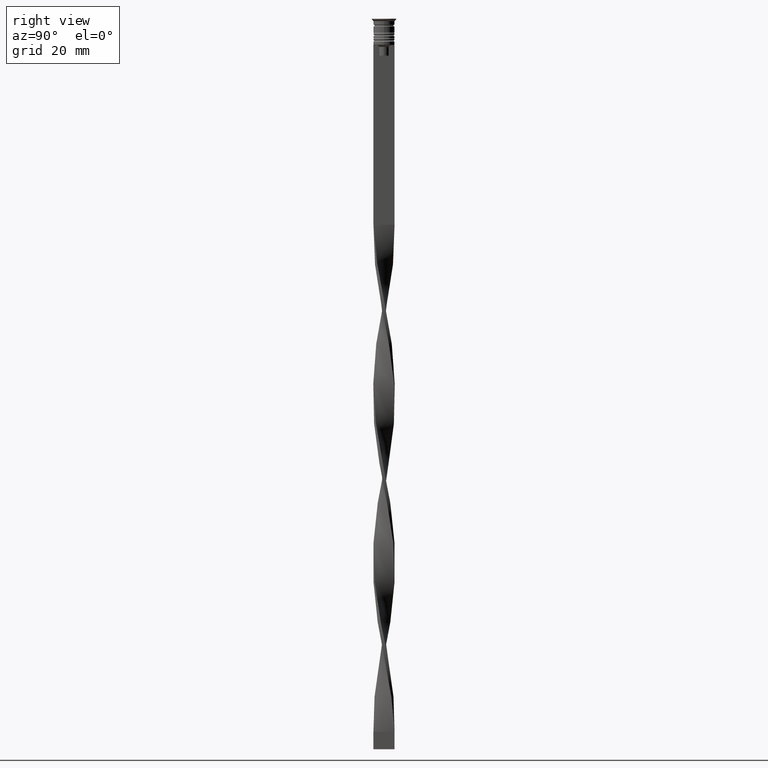
[diagram: clean part render]
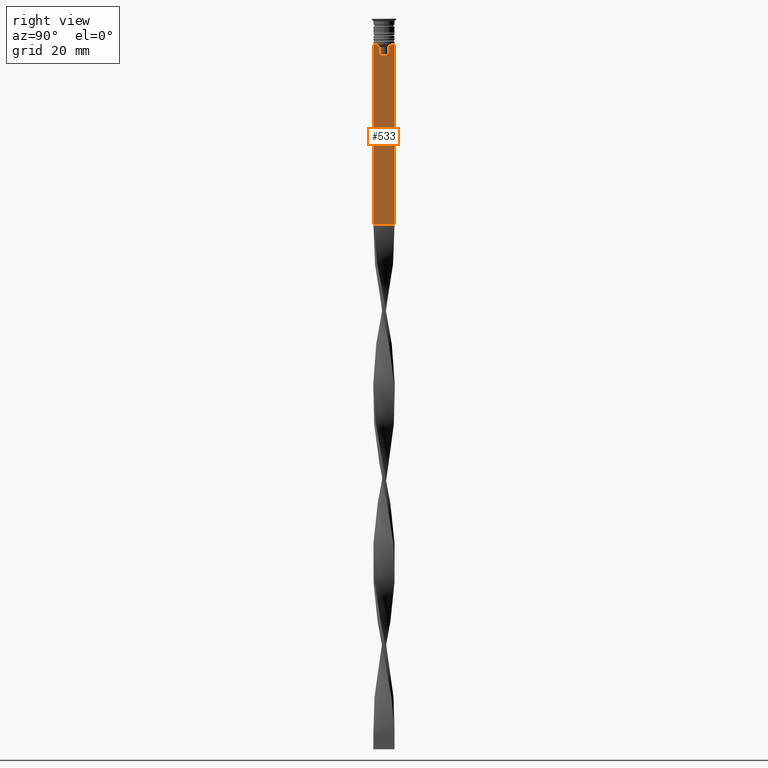
[diagram: same view with one face highlighted and labeled with its STEP entity id]
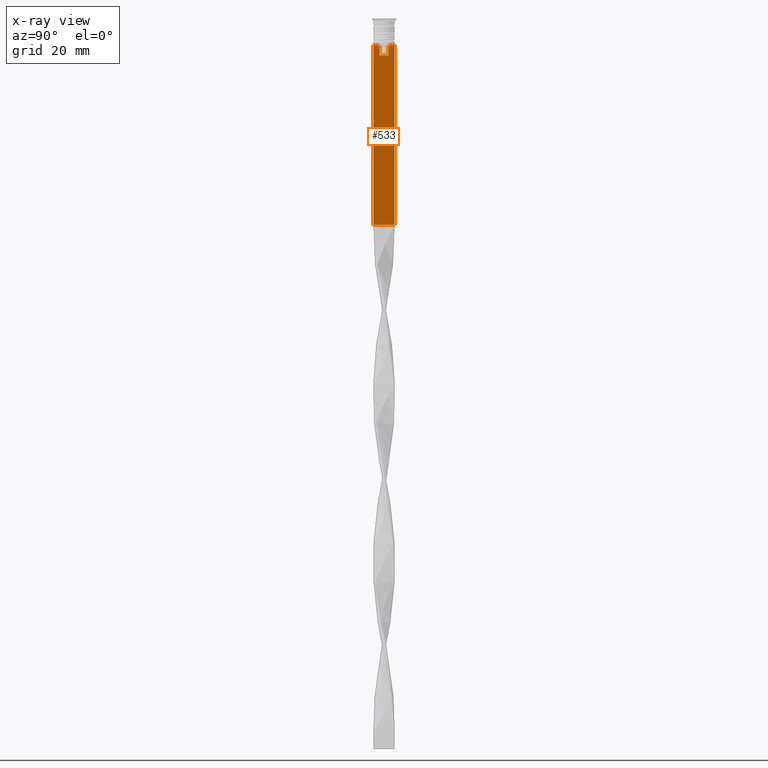
[diagram: x-ray of the same camera — body ghosted, the highlighted face saturated]
A machine part, right view. The second image highlights one B-rep face of the part: STEP entity #533.
The next image is the same camera in x-ray: the body ghosted, the highlighted face saturated — about 0% of this face is hidden behind the body in this view.
In plain terms, the highlighted planar face has unit normal (-1, 0, 0).
Its self-contained STEP definition (entity closure, byte-faithful):
#8 = DIRECTION ( 'NONE',  ( 0.000000000000000000, 0.000000000000000000, -1.000000000000000000 ) ) ;
#32 = CARTESIAN_POINT ( 'NONE',  ( 0.4999999999999998890, -3.000000000000000000, -7.500000000000000000 ) ) ;
#59 = LINE ( 'NONE', #1224, #965 ) ;
#73 = EDGE_CURVE ( 'NONE', #3183, #2482, #277, .T. ) ;
#115 = VERTEX_POINT ( 'NONE', #2541 ) ;
#155 = LINE ( 'NONE', #3302, #2460 ) ;
#211 = LINE ( 'NONE', #1708, #233 ) ;
#233 = VECTOR ( 'NONE', #286, 1000.000000000000000 ) ;
#248 = EDGE_CURVE ( 'NONE', #115, #2804, #1129, .T. ) ;
#263 = EDGE_CURVE ( 'NONE', #2540, #1652, #1782, .T. ) ;
#277 = LINE ( 'NONE', #3396, #3232 ) ;
#286 = DIRECTION ( 'NONE',  ( 0.000000000000000000, -1.000000000000000000, 0.000000000000000000 ) ) ;
#314 = CARTESIAN_POINT ( 'NONE',  ( 0.4999999999999998890, -3.000000000000000000, -7.500000000000000000 ) ) ;
#336 = ORIENTED_EDGE ( 'NONE', *, *, #248, .T. ) ;
#351 = CARTESIAN_POINT ( 'NONE',  ( 0.4999999999999998890, 1.484355510416485835, -7.834966642958598015 ) ) ;
#365 = AXIS2_PLACEMENT_3D ( 'NONE', #3422, #941, #3137 ) ;
#413 = EDGE_CURVE ( 'NONE', #2804, #1934, #211, .T. ) ;
#501 = PLANE ( 'NONE',  #365 ) ;
#509 = EDGE_CURVE ( 'NONE', #1703, #3183, #3437, .T. ) ;
#533 = ADVANCED_FACE ( 'NONE', ( #3059 ), #501, .F. ) ;
#543 = CARTESIAN_POINT ( 'NONE',  ( 0.4999999999999998890, -1.659011726860414093, -7.667884880598472286 ) ) ;
#606 = ORIENTED_EDGE ( 'NONE', *, *, #3571, .T. ) ;
#619 = CARTESIAN_POINT ( 'NONE',  ( 0.4999999999999998890, -3.000000000000000000, -7.500000000000000000 ) ) ;
#637 = EDGE_CURVE ( 'NONE', #115, #1537, #155, .T. ) ;
#678 = CARTESIAN_POINT ( 'NONE',  ( 0.4999999999999998890, 3.000000000000000000, -58.50000000000000000 ) ) ;
#695 = CARTESIAN_POINT ( 'NONE',  ( 0.4999999999999998890, -1.307669683062199439, -8.000000000000000000 ) ) ;
#804 = ORIENTED_EDGE ( 'NONE', *, *, #637, .F. ) ;
#863 = DIRECTION ( 'NONE',  ( 0.000000000000000000, -1.000000000000000000, 0.000000000000000000 ) ) ;
#872 = EDGE_CURVE ( 'NONE', #2482, #3012, #3162, .T. ) ;
#941 = DIRECTION ( 'NONE',  ( -1.000000000000000000, 0.000000000000000000, 0.000000000000000000 ) ) ;
#952 = DIRECTION ( 'NONE',  ( 0.000000000000000000, 1.000000000000000000, 0.000000000000000000 ) ) ;
#965 = VECTOR ( 'NONE', #952, 1000.000000000000000 ) ;
#1006 = DIRECTION ( 'NONE',  ( 0.000000000000000000, 0.000000000000000000, -1.000000000000000000 ) ) ;
#1129 = LINE ( 'NONE', #619, #3477 ) ;
#1196 = ORIENTED_EDGE ( 'NONE', *, *, #263, .T. ) ;
#1224 = CARTESIAN_POINT ( 'NONE',  ( 0.4999999999999998890, -3.000000000000000000, -58.50000000000000000 ) ) ;
#1248 = VECTOR ( 'NONE', #2312, 1000.000000000000000 ) ;
#1294 = ORIENTED_EDGE ( 'NONE', *, *, #73, .T. ) ;
#1304 = CARTESIAN_POINT ( 'NONE',  ( 0.4999999999999998890, -3.000000000000000000, -1.417237469701779329 ) ) ;
#1342 = CARTESIAN_POINT ( 'NONE',  ( 0.4999999999999998890, 1.307669683062199439, -10.49999999999999822 ) ) ;
#1357 = CARTESIAN_POINT ( 'NONE',  ( 0.4999999999999998890, 1.833030277982335754, -7.500000000000000000 ) ) ;
#1382 = VECTOR ( 'NONE', #1006, 1000.000000000000000 ) ;
#1406 = DIRECTION ( 'NONE',  ( 0.000000000000000000, -1.000000000000000000, 0.000000000000000000 ) ) ;
#1480 = ORIENTED_EDGE ( 'NONE', *, *, #872, .T. ) ;
#1489 = VECTOR ( 'NONE', #8, 1000.000000000000000 ) ;
#1537 = VERTEX_POINT ( 'NONE', #678 ) ;
#1548 = CARTESIAN_POINT ( 'NONE',  ( 0.4999999999999998890, -1.307669683062199439, -8.000000000000000000 ) ) ;
#1640 = ORIENTED_EDGE ( 'NONE', *, *, #2859, .T. ) ;
#1652 = VERTEX_POINT ( 'NONE', #1812 ) ;
#1703 = VERTEX_POINT ( 'NONE', #2411 ) ;
#1708 = CARTESIAN_POINT ( 'NONE',  ( 0.4999999999999998890, -3.000000000000000000, -7.500000000000000000 ) ) ;
#1763 = CARTESIAN_POINT ( 'NONE',  ( 0.4999999999999998890, 1.659046061654642967, -7.667851756010362507 ) ) ;
#1782 = LINE ( 'NONE', #32, #1248 ) ;
#1812 = CARTESIAN_POINT ( 'NONE',  ( 0.4999999999999998890, -2.856571371417139904, -7.500000000000000000 ) ) ;
#1875 = ORIENTED_EDGE ( 'NONE', *, *, #2301, .T. ) ;
#1934 = VERTEX_POINT ( 'NONE', #1357 ) ;
#1994 = CARTESIAN_POINT ( 'NONE',  ( 0.4999999999999998890, 1.307669683062199439, 0.000000000000000000 ) ) ;
#2171 = LINE ( 'NONE', #1304, #1382 ) ;
#2224 = CARTESIAN_POINT ( 'NONE',  ( 0.4999999999999998890, -1.307669683062199439, 0.000000000000000000 ) ) ;
#2235 = VERTEX_POINT ( 'NONE', #2529 ) ;
#2301 = EDGE_CURVE ( 'NONE', #3012, #2540, #2706, .T. ) ;
#2312 = DIRECTION ( 'NONE',  ( 0.000000000000000000, -1.000000000000000000, 0.000000000000000000 ) ) ;
#2345 = VECTOR ( 'NONE', #863, 1000.000000000000000 ) ;
#2411 = CARTESIAN_POINT ( 'NONE',  ( 0.4999999999999998890, 1.307669683062199439, -8.000000000000000000 ) ) ;
#2442 = ORIENTED_EDGE ( 'NONE', *, *, #509, .T. ) ;
#2460 = VECTOR ( 'NONE', #3563, 1000.000000000000000 ) ;
#2482 = VERTEX_POINT ( 'NONE', #3667 ) ;
#2513 = CARTESIAN_POINT ( 'NONE',  ( 0.4999999999999998890, -1.484307477388859153, -7.835011508197190722 ) ) ;
#2520 = CARTESIAN_POINT ( 'NONE',  ( 0.4999999999999998890, -3.000000000000000000, -7.500000000000000000 ) ) ;
#2529 = CARTESIAN_POINT ( 'NONE',  ( 0.4999999999999998890, -3.000000000000000000, -58.50000000000000000 ) ) ;
#2540 = VERTEX_POINT ( 'NONE', #3360 ) ;
#2541 = CARTESIAN_POINT ( 'NONE',  ( 0.4999999999999998890, 3.000000000000000000, -7.500000000000000000 ) ) ;
#2646 = CARTESIAN_POINT ( 'NONE',  ( 0.4999999999999998890, 1.833030277982335754, -7.500000000000000000 ) ) ;
#2706 = B_SPLINE_CURVE_WITH_KNOTS ( 'NONE', 3,
 ( #695, #2513, #543, #2976 ),
 .UNSPECIFIED., .F., .F.,
 ( 4, 4 ),
 ( 0.007225659348748082224, 0.007950554640278054835 ),
 .UNSPECIFIED. ) ;
#2734 = ORIENTED_EDGE ( 'NONE', *, *, #3406, .T. ) ;
#2804 = VERTEX_POINT ( 'NONE', #3467 ) ;
#2834 = DIRECTION ( 'NONE',  ( -0.000000000000000000, -0.000000000000000000, 1.000000000000000000 ) ) ;
#2859 = EDGE_CURVE ( 'NONE', #2235, #1537, #59, .T. ) ;
#2896 = EDGE_LOOP ( 'NONE', ( #3689, #606, #2442, #1294, #1480, #1875, #1196, #2734, #3452, #1640, #804, #336 ) ) ;
#2922 = B_SPLINE_CURVE_WITH_KNOTS ( 'NONE', 3,
 ( #2646, #1763, #351, #3180 ),
 .UNSPECIFIED., .F., .F.,
 ( 4, 4 ),
 ( 0.003278537493109848298, 0.004003794023484941178 ),
 .UNSPECIFIED. ) ;
#2941 = DIRECTION ( 'NONE',  ( 0.000000000000000000, -1.000000000000000000, 0.000000000000000000 ) ) ;
#2976 = CARTESIAN_POINT ( 'NONE',  ( 0.4999999999999998890, -1.833030277982335754, -7.500000000000000000 ) ) ;
#3012 = VERTEX_POINT ( 'NONE', #1548 ) ;
#3059 = FACE_OUTER_BOUND ( 'NONE', #2896, .T. ) ;
#3096 = EDGE_CURVE ( 'NONE', #3465, #2235, #2171, .T. ) ;
#3120 = VECTOR ( 'NONE', #2834, 1000.000000000000000 ) ;
#3137 = DIRECTION ( 'NONE',  ( 0.000000000000000000, 0.000000000000000000, 1.000000000000000000 ) ) ;
#3162 = LINE ( 'NONE', #2224, #3120 ) ;
#3180 = CARTESIAN_POINT ( 'NONE',  ( 0.4999999999999998890, 1.307669683062199439, -8.000000000000000000 ) ) ;
#3183 = VERTEX_POINT ( 'NONE', #1342 ) ;
#3232 = VECTOR ( 'NONE', #1406, 1000.000000000000000 ) ;
#3302 = CARTESIAN_POINT ( 'NONE',  ( 0.4999999999999998890, 3.000000000000000000, -1.417237469701779329 ) ) ;
#3360 = CARTESIAN_POINT ( 'NONE',  ( 0.4999999999999998890, -1.833030277982335754, -7.500000000000000000 ) ) ;
#3396 = CARTESIAN_POINT ( 'NONE',  ( 0.4999999999999998890, 1.399999999999997691, -10.49999999999999822 ) ) ;
#3406 = EDGE_CURVE ( 'NONE', #1652, #3465, #3408, .T. ) ;
#3408 = LINE ( 'NONE', #2520, #2345 ) ;
#3422 = CARTESIAN_POINT ( 'NONE',  ( 0.4999999999999998890, -3.000000000000000000, -1.417237469701779329 ) ) ;
#3437 = LINE ( 'NONE', #1994, #1489 ) ;
#3452 = ORIENTED_EDGE ( 'NONE', *, *, #3096, .T. ) ;
#3465 = VERTEX_POINT ( 'NONE', #314 ) ;
#3467 = CARTESIAN_POINT ( 'NONE',  ( 0.4999999999999998890, 2.856571371417139904, -7.500000000000000000 ) ) ;
#3477 = VECTOR ( 'NONE', #2941, 1000.000000000000000 ) ;
#3563 = DIRECTION ( 'NONE',  ( 0.000000000000000000, 0.000000000000000000, -1.000000000000000000 ) ) ;
#3571 = EDGE_CURVE ( 'NONE', #1934, #1703, #2922, .T. ) ;
#3667 = CARTESIAN_POINT ( 'NONE',  ( 0.4999999999999998890, -1.307669683062199439, -10.49999999999999822 ) ) ;
#3689 = ORIENTED_EDGE ( 'NONE', *, *, #413, .T. ) ;